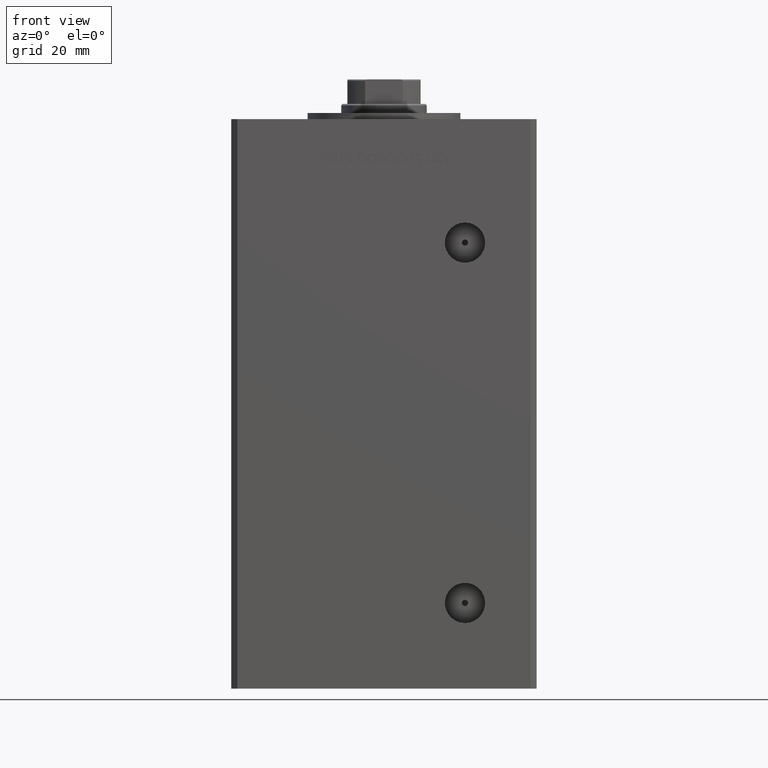
[diagram: clean part render]
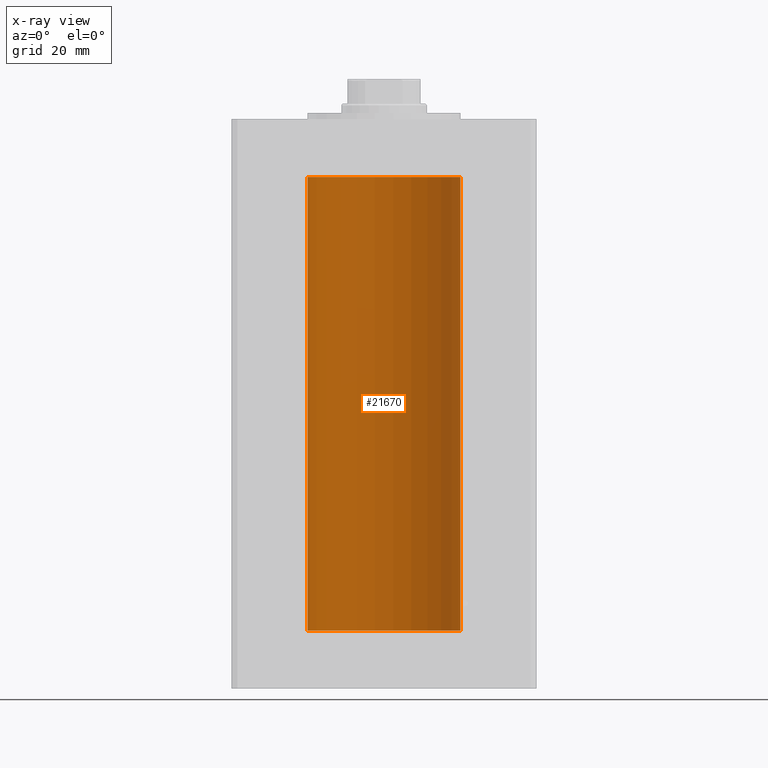
[diagram: x-ray — body ghosted, one internal face saturated and labeled with its STEP entity id]
A machine part, front view, then the same camera in x-ray: the body is ghosted and one INTERNAL B-rep face — a face not visible from any outside direction — is saturated and labeled: STEP entity #21670.
In plain terms, the highlighted cylindrical surface (partial cylindrical patch) has radius 25 mm, axis along (-0, -0, -1).
Its self-contained STEP definition (entity closure, byte-faithful):
#693 = CARTESIAN_POINT ( 'NONE',  ( 25.00000000000000000, 3.061616997868383043E-15, 148.5000000000000000 ) ) ;
#1977 = DIRECTION ( 'NONE',  ( -0.000000000000000000, -0.000000000000000000, -1.000000000000000000 ) ) ;
#2409 = DIRECTION ( 'NONE',  ( -0.000000000000000000, -0.000000000000000000, -1.000000000000000000 ) ) ;
#6367 = LINE ( 'NONE', #30095, #46728 ) ;
#10183 = AXIS2_PLACEMENT_3D ( 'NONE', #26505, #1977, #18312 ) ;
#10658 = CYLINDRICAL_SURFACE ( 'NONE', #10183, 25.00000000000000000 ) ;
#13549 = CARTESIAN_POINT ( 'NONE',  ( 25.00000000000000000, 3.061616997868383043E-15, 148.5000000000000000 ) ) ;
#14159 = CARTESIAN_POINT ( 'NONE',  ( 0.000000000000000000, 0.000000000000000000, 148.5000000000000000 ) ) ;
#15101 = VERTEX_POINT ( 'NONE', #44514 ) ;
#15447 = CARTESIAN_POINT ( 'NONE',  ( -25.00000000000000000, 0.000000000000000000, 148.5000000000000000 ) ) ;
#15955 = AXIS2_PLACEMENT_3D ( 'NONE', #14159, #49528, #30255 ) ;
#18312 = DIRECTION ( 'NONE',  ( -1.000000000000000000, 0.000000000000000000, 0.000000000000000000 ) ) ;
#19695 = CARTESIAN_POINT ( 'NONE',  ( 0.000000000000000000, 0.000000000000000000, 0.000000000000000000 ) ) ;
#21244 = DIRECTION ( 'NONE',  ( -0.000000000000000000, -0.000000000000000000, -1.000000000000000000 ) ) ;
#21670 = ADVANCED_FACE ( 'NONE', ( #26239 ), #10658, .F. ) ;
#22400 = EDGE_CURVE ( 'NONE', #27805, #32502, #39575, .T. ) ;
#23396 = DIRECTION ( 'NONE',  ( 1.000000000000000000, 0.000000000000000000, 0.000000000000000000 ) ) ;
#25672 = EDGE_LOOP ( 'NONE', ( #51819, #48541, #28956, #34084 ) ) ;
#26196 = EDGE_CURVE ( 'NONE', #27805, #32643, #48184, .T. ) ;
#26239 = FACE_OUTER_BOUND ( 'NONE', #25672, .T. ) ;
#26505 = CARTESIAN_POINT ( 'NONE',  ( 0.000000000000000000, 0.000000000000000000, 148.5000000000000000 ) ) ;
#27617 = DIRECTION ( 'NONE',  ( -0.000000000000000000, 0.000000000000000000, 1.000000000000000000 ) ) ;
#27805 = VERTEX_POINT ( 'NONE', #13549 ) ;
#28956 = ORIENTED_EDGE ( 'NONE', *, *, #41182, .T. ) ;
#29153 = CARTESIAN_POINT ( 'NONE',  ( 25.00000000000000000, 3.061616997868383043E-15, 0.000000000000000000 ) ) ;
#30095 = CARTESIAN_POINT ( 'NONE',  ( -25.00000000000000000, 0.000000000000000000, 148.5000000000000000 ) ) ;
#30118 = EDGE_CURVE ( 'NONE', #32643, #15101, #31360, .T. ) ;
#30255 = DIRECTION ( 'NONE',  ( 1.000000000000000000, 0.000000000000000000, 0.000000000000000000 ) ) ;
#31360 = CIRCLE ( 'NONE', #42341, 25.00000000000000000 ) ;
#32502 = VERTEX_POINT ( 'NONE', #15447 ) ;
#32643 = VERTEX_POINT ( 'NONE', #29153 ) ;
#34084 = ORIENTED_EDGE ( 'NONE', *, *, #30118, .F. ) ;
#39575 = CIRCLE ( 'NONE', #15955, 25.00000000000000000 ) ;
#41182 = EDGE_CURVE ( 'NONE', #32502, #15101, #6367, .T. ) ;
#42341 = AXIS2_PLACEMENT_3D ( 'NONE', #19695, #27617, #23396 ) ;
#44514 = CARTESIAN_POINT ( 'NONE',  ( -25.00000000000000000, 0.000000000000000000, 0.000000000000000000 ) ) ;
#45567 = VECTOR ( 'NONE', #21244, 1000.000000000000000 ) ;
#46728 = VECTOR ( 'NONE', #2409, 1000.000000000000000 ) ;
#48184 = LINE ( 'NONE', #693, #45567 ) ;
#48541 = ORIENTED_EDGE ( 'NONE', *, *, #22400, .T. ) ;
#49528 = DIRECTION ( 'NONE',  ( -0.000000000000000000, 0.000000000000000000, 1.000000000000000000 ) ) ;
#51819 = ORIENTED_EDGE ( 'NONE', *, *, #26196, .F. ) ;